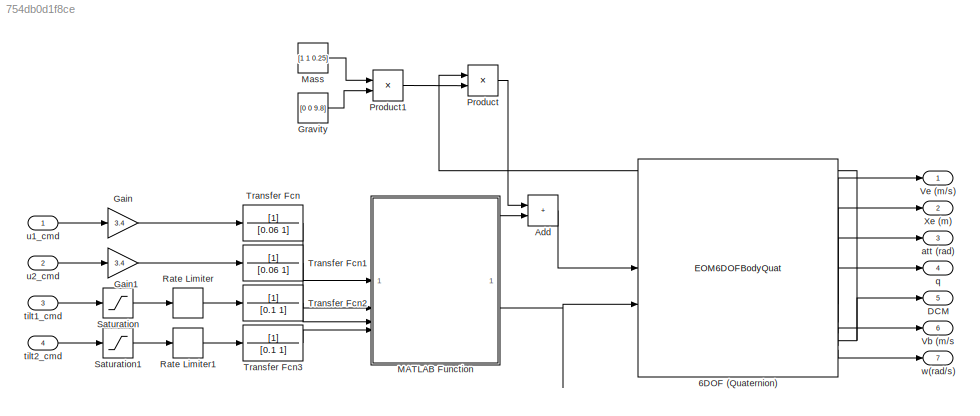
MODEL slx_754db0d1f8ce
KIND model
CONFIG AbsTol = auto
CONFIG EnableMultiTasking = off
CONFIG FixedStep = auto
CONFIG MaxStep = auto
CONFIG MinStep = auto
CONFIG RelTol = 1e-3
CONFIG SampleTimeConstraint = Unconstrained
CONFIG SolverName = FixedStepAuto
CONFIG StartTime = 0.0
CONFIG StopTime = 10.0
BLOCK [EOM6DOFBodyQuat] 6DOF (Quaternion)
  eul_0 = [0.3 0 0]
  mass_0 = 0.25
BLOCK [Sum] Add
  IconShape = rectangular
BLOCK [Outport] DCM
  Port = 5
BLOCK [Gain] Gain
  Gain = 3.4
BLOCK [Gain] Gain1
  Gain = 3.4
BLOCK [Constant] Gravity
  Value = [0 0 9.8]
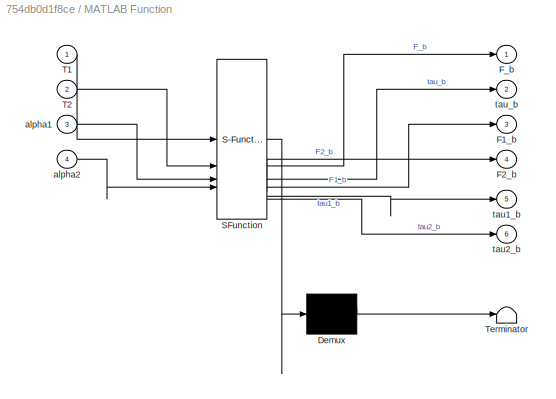
BLOCK [SubSystem] MATLAB Function
  ErrorFcn = Stateflow.Translate.translate
  PermitHierarchicalResolution = ExplicitOnly
  SFBlockType = MATLAB Function
  TreatAsAtomicUnit = on
BLOCK [Demux] MATLAB Function/ Demux 
  Outputs = 1
BLOCK [S-Function] MATLAB Function/ SFunction 
  EnableBusSupport = off
  FunctionName = sf_sfun
  PortCounts = [4 7]
  SFcnIsStateOwnerBlock = off
  SFunctionDeploymentMode = off
  Tag = Stateflow S-Function 2
BLOCK [Terminator] MATLAB Function/ Terminator 
BLOCK [Outport] MATLAB Function/F1_b
  Port = 3
BLOCK [Outport] MATLAB Function/F2_b
  Port = 4
BLOCK [Outport] MATLAB Function/F_b
BLOCK [Inport] MATLAB Function/T1
BLOCK [Inport] MATLAB Function/T2
  Port = 2
BLOCK [Inport] MATLAB Function/alpha1
  Port = 3
BLOCK [Inport] MATLAB Function/alpha2
  Port = 4
BLOCK [Outport] MATLAB Function/tau1_b
  Port = 5
BLOCK [Outport] MATLAB Function/tau2_b
  Port = 6
BLOCK [Outport] MATLAB Function/tau_b
  Port = 2
BLOCK [Constant] Mass
  Value = [1 1 0.25]
BLOCK [Product] Product
  Multiplication = Matrix(*)
BLOCK [Product] Product1
BLOCK [RateLimiter] Rate Limiter
  FallingSlewLimit = -8
  RisingSlewLimit = 8
  SampleTimeMode = inherited
BLOCK [RateLimiter] Rate Limiter1
  FallingSlewLimit = -8
  RisingSlewLimit = 8
  SampleTimeMode = inherited
BLOCK [Saturate] Saturation
  LowerLimit = -0.35
  UpperLimit = 0.35
BLOCK [Saturate] Saturation1
  LowerLimit = -0.35
  UpperLimit = 0.35
BLOCK [TransferFcn] Transfer Fcn
  Denominator = [0.06 1]
BLOCK [TransferFcn] Transfer Fcn1
  Denominator = [0.06 1]
BLOCK [TransferFcn] Transfer Fcn2
  Denominator = [0.1 1]
BLOCK [TransferFcn] Transfer Fcn3
  Denominator = [0.1 1]
BLOCK [Outport] Vb (m//s
  Port = 6
BLOCK [Outport] Ve (m//s)
BLOCK [Outport] Xe (m)
  Port = 2
BLOCK [Outport] att (rad)
  Port = 3
BLOCK [Outport] q
  Port = 4
BLOCK [Inport] tilt1_cmd
  Port = 3
BLOCK [Inport] tilt2_cmd
  Port = 4
BLOCK [Inport] u1_cmd
BLOCK [Inport] u2_cmd
  Port = 2
BLOCK [Outport] w(rad//s)
  Port = 7
LINE 6DOF (Quaternion):1 -> Ve (m//s):1
LINE 6DOF (Quaternion):2 -> Xe (m):1
LINE 6DOF (Quaternion):3 -> att (rad):1
LINE 6DOF (Quaternion):4 -> q:1
NET 6DOF (Quaternion):5 -> DCM:1, Product:1
LINE 6DOF (Quaternion):6 -> Vb (m//s:1
LINE 6DOF (Quaternion):7 -> w(rad//s):1
LINE Add:1 -> 6DOF (Quaternion):1
LINE Gain1:1 -> Transfer Fcn1:1
LINE Gain:1 -> Transfer Fcn:1
LINE Gravity:1 -> Product1:2
LINE MATLAB Function:1 -> Add:2
LINE MATLAB Function:2 -> 6DOF (Quaternion):2
LINE Mass:1 -> Product1:1
LINE Product1:1 -> Product:2
LINE Product:1 -> Add:1
LINE Rate Limiter1:1 -> Transfer Fcn3:1
LINE Rate Limiter:1 -> Transfer Fcn2:1
LINE Saturation1:1 -> Rate Limiter1:1
LINE Saturation:1 -> Rate Limiter:1
LINE Transfer Fcn1:1 -> MATLAB Function:2
LINE Transfer Fcn2:1 -> MATLAB Function:3
LINE Transfer Fcn3:1 -> MATLAB Function:4
LINE Transfer Fcn:1 -> MATLAB Function:1
LINE tilt1_cmd:1 -> Saturation:1
LINE tilt2_cmd:1 -> Saturation1:1
LINE u1_cmd:1 -> Gain:1
LINE u2_cmd:1 -> Gain1:1
note: NET lines group one-source signal fan-out (src -> all destinations, sorted); 1:1 wires keep LINE
CHART MATLAB Function states=1 transitions=1
  STATE_LABEL 'eML_blk_kernel()'
  STATE_LABEL 'SCRIPT:\nfunction [F_b, tau_b, F1_b, F2_b, tau1_b, tau2_b] = forces_torques(T1, T2, alpha1, alpha2)\n% Minimal bicopter force/torque model (no Simscape)\n%\n% Assumptions:\n% - Body axes: x forward, y right, z down (common autopilot body frame)\n% - Rotors at r1=[0; +L; 0], r2=[0; -L; 0]\n% - Tilt rotates thrust into x–z plane => rotation about +y axis\n% - At alpha=0, thrust points along -z_b ("up" in z-...<+1156ch>'
CHART  states=0 transitions=0
